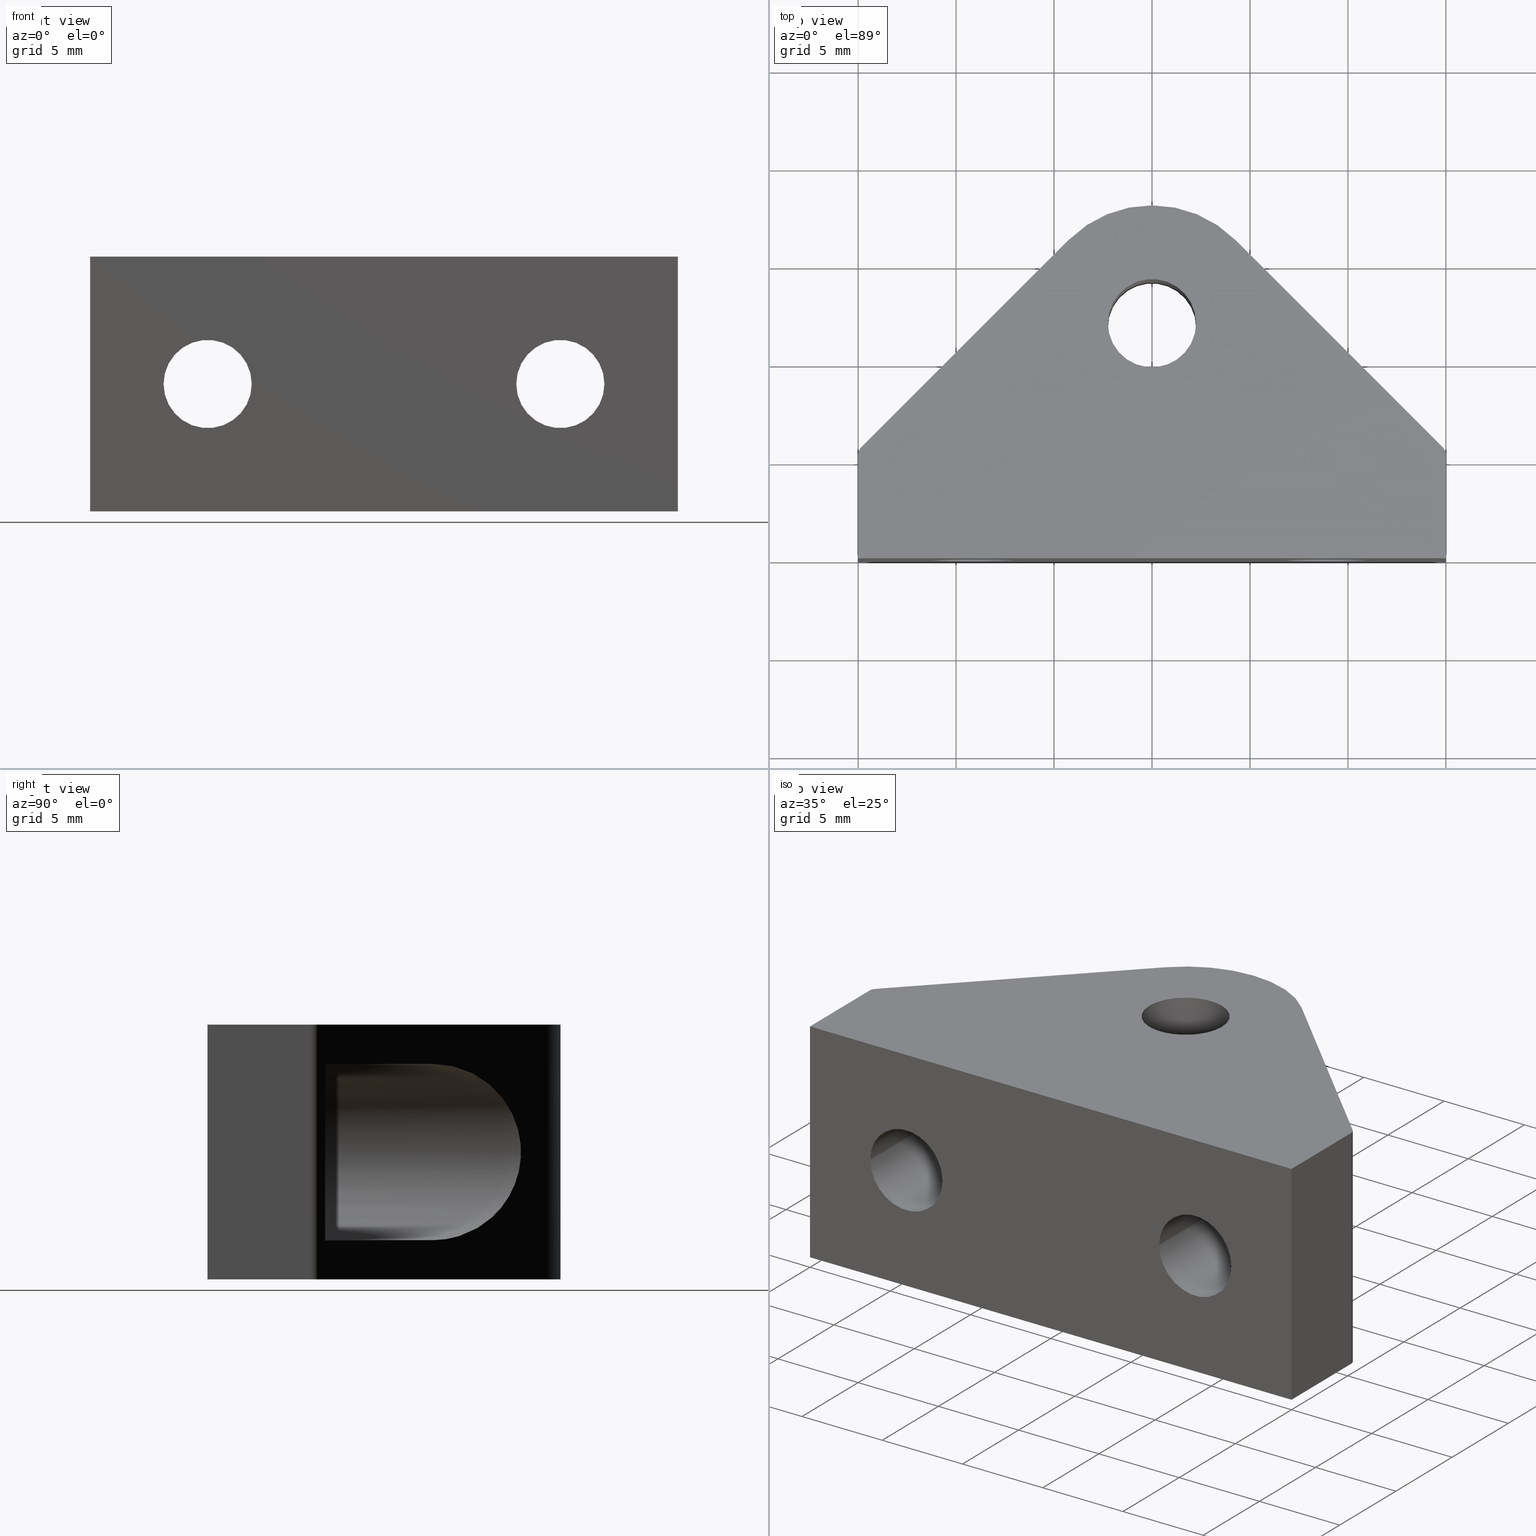
[diagram: canonical four-view strip — front | top / right | iso, engineering-drawing reading convention]
A machine part, canonical four-view strip (front | top / right | iso — engineering-drawing reading convention). The complete STEP part file that produces these views, byte-faithful:
ISO-10303-21;
HEADER;
/* Generated by software containing ST-Developer
 * from STEP Tools, Inc. (www.steptools.com) 
 */

FILE_DESCRIPTION(
/* description */ ('SUPPORTO TRIANG. GRIGIO'),
/* implementation_level */ '2;1');

FILE_NAME(
/* name */ 
'Q:\\Catalogo\\2_Accessori Dierre\\Per Download Web\\CATALOGO ACCESSOR
I PER RIPARI\\PAGINA 73\\DSPXX0000135.stp',
/* time_stamp */ '2018-02-06T16:03:23+01:00',
/* author */ ('fzagni'),
/* organization */ (''),
/* preprocessor_version */ 'ST-DEVELOPER v16.1',
/* originating_system */ 'Autodesk Inventor 2016',
/* authorisation */ '');

FILE_SCHEMA (('AUTOMOTIVE_DESIGN { 1 0 10303 214 3 1 1 }'));
ENDSEC;

DATA;
#10=MECHANICAL_DESIGN_GEOMETRIC_PRESENTATION_REPRESENTATION('',(#13),#633);
#11=SHAPE_REPRESENTATION_RELATIONSHIP('SRR','None',#642,#12);
#12=ADVANCED_BREP_SHAPE_REPRESENTATION('',(#14),#632);
#13=STYLED_ITEM('',(#651),#14);
#14=MANIFOLD_SOLID_BREP('Solido1',#379);
#15=CYLINDRICAL_SURFACE('',#390,4.5);
#16=CYLINDRICAL_SURFACE('',#392,2.25);
#17=CYLINDRICAL_SURFACE('',#397,4.5);
#18=CYLINDRICAL_SURFACE('',#398,2.25);
#19=CYLINDRICAL_SURFACE('',#400,2.25);
#20=CYLINDRICAL_SURFACE('',#403,0.5);
#21=CYLINDRICAL_SURFACE('',#410,0.5);
#22=CYLINDRICAL_SURFACE('',#412,6.);
#23=CIRCLE('',#388,4.5);
#24=CIRCLE('',#389,2.25);
#25=CIRCLE('',#393,2.25);
#26=CIRCLE('',#395,4.5);
#27=CIRCLE('',#396,2.25);
#28=CIRCLE('',#399,2.25);
#29=CIRCLE('',#401,2.25);
#30=CIRCLE('',#402,2.25);
#31=CIRCLE('',#404,0.5);
#32=CIRCLE('',#405,0.5);
#33=CIRCLE('',#408,6.);
#34=CIRCLE('',#409,0.5);
#35=CIRCLE('',#411,0.5);
#36=CIRCLE('',#413,6.);
#37=FACE_BOUND('',#76,.T.);
#38=FACE_BOUND('',#78,.T.);
#39=FACE_BOUND('',#81,.T.);
#40=FACE_BOUND('',#83,.T.);
#41=FACE_BOUND('',#86,.T.);
#42=FACE_BOUND('',#88,.T.);
#43=FACE_BOUND('',#92,.T.);
#44=FACE_BOUND('',#96,.T.);
#45=FACE_BOUND('',#98,.T.);
#46=FACE_BOUND('',#99,.T.);
#47=FACE_BOUND('',#102,.T.);
#48=ELLIPSE('',#386,6.36396103067893,4.5);
#49=ELLIPSE('',#391,6.36396103067893,4.5);
#50=FACE_OUTER_BOUND('',#71,.T.);
#51=FACE_OUTER_BOUND('',#72,.T.);
#52=FACE_OUTER_BOUND('',#73,.T.);
#53=FACE_OUTER_BOUND('',#74,.T.);
#54=FACE_OUTER_BOUND('',#75,.T.);
#55=FACE_OUTER_BOUND('',#77,.T.);
#56=FACE_OUTER_BOUND('',#79,.T.);
#57=FACE_OUTER_BOUND('',#80,.T.);
#58=FACE_OUTER_BOUND('',#82,.T.);
#59=FACE_OUTER_BOUND('',#84,.T.);
#60=FACE_OUTER_BOUND('',#85,.T.);
#61=FACE_OUTER_BOUND('',#87,.T.);
#62=FACE_OUTER_BOUND('',#89,.T.);
#63=FACE_OUTER_BOUND('',#90,.T.);
#64=FACE_OUTER_BOUND('',#91,.T.);
#65=FACE_OUTER_BOUND('',#93,.T.);
#66=FACE_OUTER_BOUND('',#94,.T.);
#67=FACE_OUTER_BOUND('',#95,.T.);
#68=FACE_OUTER_BOUND('',#97,.T.);
#69=FACE_OUTER_BOUND('',#100,.T.);
#70=FACE_OUTER_BOUND('',#101,.T.);
#71=EDGE_LOOP('',(#249,#250,#251));
#72=EDGE_LOOP('',(#252,#253,#254));
#73=EDGE_LOOP('',(#255,#256,#257));
#74=EDGE_LOOP('',(#258,#259,#260));
#75=EDGE_LOOP('',(#261,#262,#263,#264));
#76=EDGE_LOOP('',(#265,#266,#267,#268));
#77=EDGE_LOOP('',(#269,#270,#271,#272));
#78=EDGE_LOOP('',(#273));
#79=EDGE_LOOP('',(#274,#275,#276,#277));
#80=EDGE_LOOP('',(#278));
#81=EDGE_LOOP('',(#279));
#82=EDGE_LOOP('',(#280,#281,#282,#283));
#83=EDGE_LOOP('',(#284));
#84=EDGE_LOOP('',(#285,#286,#287,#288));
#85=EDGE_LOOP('',(#289));
#86=EDGE_LOOP('',(#290));
#87=EDGE_LOOP('',(#291));
#88=EDGE_LOOP('',(#292));
#89=EDGE_LOOP('',(#293,#294,#295,#296));
#90=EDGE_LOOP('',(#297,#298,#299,#300));
#91=EDGE_LOOP('',(#301,#302,#303,#304,#305,#306,#307,#308));
#92=EDGE_LOOP('',(#309));
#93=EDGE_LOOP('',(#310,#311,#312,#313));
#94=EDGE_LOOP('',(#314,#315,#316,#317));
#95=EDGE_LOOP('',(#318,#319,#320,#321));
#96=EDGE_LOOP('',(#322,#323,#324,#325));
#97=EDGE_LOOP('',(#326,#327,#328,#329));
#98=EDGE_LOOP('',(#330));
#99=EDGE_LOOP('',(#331));
#100=EDGE_LOOP('',(#332,#333,#334,#335));
#101=EDGE_LOOP('',(#336,#337,#338,#339,#340,#341,#342,#343));
#102=EDGE_LOOP('',(#344));
#103=LINE('',#530,#135);
#104=LINE('',#532,#136);
#105=LINE('',#533,#137);
#106=LINE('',#537,#138);
#107=LINE('',#539,#139);
#108=LINE('',#540,#140);
#109=LINE('',#544,#141);
#110=LINE('',#546,#142);
#111=LINE('',#547,#143);
#112=LINE('',#551,#144);
#113=LINE('',#553,#145);
#114=LINE('',#554,#146);
#115=LINE('',#558,#147);
#116=LINE('',#560,#148);
#117=LINE('',#562,#149);
#118=LINE('',#563,#150);
#119=LINE('',#564,#151);
#120=LINE('',#568,#152);
#121=LINE('',#594,#153);
#122=LINE('',#597,#154);
#123=LINE('',#600,#155);
#124=LINE('',#602,#156);
#125=LINE('',#603,#157);
#126=LINE('',#606,#158);
#127=LINE('',#611,#159);
#128=LINE('',#612,#160);
#129=LINE('',#616,#161);
#130=LINE('',#620,#162);
#131=LINE('',#622,#163);
#132=LINE('',#625,#164);
#133=LINE('',#626,#165);
#134=LINE('',#628,#166);
#135=VECTOR('',#422,7.77817459305202);
#136=VECTOR('',#423,5.5);
#137=VECTOR('',#424,5.5);
#138=VECTOR('',#427,7.77817459305202);
#139=VECTOR('',#428,5.5);
#140=VECTOR('',#429,5.5);
#141=VECTOR('',#432,7.77817459305202);
#142=VECTOR('',#433,5.5);
#143=VECTOR('',#434,5.5);
#144=VECTOR('',#437,7.77817459305202);
#145=VECTOR('',#438,5.5);
#146=VECTOR('',#439,5.5);
#147=VECTOR('',#442,13.);
#148=VECTOR('',#443,15.0060966544099);
#149=VECTOR('',#444,13.);
#150=VECTOR('',#445,15.0060966544099);
#151=VECTOR('',#446,9.);
#152=VECTOR('',#453,9.);
#153=VECTOR('',#486,13.);
#154=VECTOR('',#489,13.);
#155=VECTOR('',#492,5.29289321881346);
#156=VECTOR('',#493,13.);
#157=VECTOR('',#494,5.29289321881346);
#158=VECTOR('',#497,15.0060966544099);
#159=VECTOR('',#502,5.29289321881345);
#160=VECTOR('',#503,30.);
#161=VECTOR('',#508,13.);
#162=VECTOR('',#513,13.);
#163=VECTOR('',#516,15.0060966544099);
#164=VECTOR('',#519,13.);
#165=VECTOR('',#520,30.);
#166=VECTOR('',#523,5.29289321881345);
#167=VERTEX_POINT('',#528);
#168=VERTEX_POINT('',#529);
#169=VERTEX_POINT('',#531);
#170=VERTEX_POINT('',#535);
#171=VERTEX_POINT('',#536);
#172=VERTEX_POINT('',#538);
#173=VERTEX_POINT('',#542);
#174=VERTEX_POINT('',#543);
#175=VERTEX_POINT('',#545);
#176=VERTEX_POINT('',#549);
#177=VERTEX_POINT('',#550);
#178=VERTEX_POINT('',#552);
#179=VERTEX_POINT('',#556);
#180=VERTEX_POINT('',#557);
#181=VERTEX_POINT('',#559);
#182=VERTEX_POINT('',#561);
#183=VERTEX_POINT('',#569);
#184=VERTEX_POINT('',#574);
#185=VERTEX_POINT('',#578);
#186=VERTEX_POINT('',#582);
#187=VERTEX_POINT('',#585);
#188=VERTEX_POINT('',#587);
#189=VERTEX_POINT('',#590);
#190=VERTEX_POINT('',#591);
#191=VERTEX_POINT('',#593);
#192=VERTEX_POINT('',#595);
#193=VERTEX_POINT('',#599);
#194=VERTEX_POINT('',#601);
#195=VERTEX_POINT('',#605);
#196=VERTEX_POINT('',#608);
#197=VERTEX_POINT('',#610);
#198=VERTEX_POINT('',#614);
#199=VERTEX_POINT('',#618);
#200=VERTEX_POINT('',#624);
#201=EDGE_CURVE('',#167,#168,#103,.T.);
#202=EDGE_CURVE('',#169,#167,#104,.T.);
#203=EDGE_CURVE('',#169,#168,#105,.T.);
#204=EDGE_CURVE('',#170,#171,#106,.T.);
#205=EDGE_CURVE('',#172,#170,#107,.T.);
#206=EDGE_CURVE('',#172,#171,#108,.T.);
#207=EDGE_CURVE('',#173,#174,#109,.T.);
#208=EDGE_CURVE('',#175,#173,#110,.T.);
#209=EDGE_CURVE('',#175,#174,#111,.T.);
#210=EDGE_CURVE('',#176,#177,#112,.T.);
#211=EDGE_CURVE('',#178,#176,#113,.T.);
#212=EDGE_CURVE('',#178,#177,#114,.T.);
#213=EDGE_CURVE('',#179,#180,#115,.T.);
#214=EDGE_CURVE('',#179,#181,#116,.T.);
#215=EDGE_CURVE('',#182,#181,#117,.T.);
#216=EDGE_CURVE('',#180,#182,#118,.T.);
#217=EDGE_CURVE('',#177,#173,#119,.T.);
#218=EDGE_CURVE('',#174,#176,#48,.T.);
#219=EDGE_CURVE('',#172,#169,#23,.T.);
#220=EDGE_CURVE('',#168,#170,#120,.T.);
#221=EDGE_CURVE('',#183,#183,#24,.T.);
#222=EDGE_CURVE('',#171,#167,#49,.T.);
#223=EDGE_CURVE('',#184,#184,#25,.T.);
#224=EDGE_CURVE('',#175,#178,#26,.T.);
#225=EDGE_CURVE('',#185,#185,#27,.T.);
#226=EDGE_CURVE('',#186,#186,#28,.T.);
#227=EDGE_CURVE('',#187,#187,#29,.T.);
#228=EDGE_CURVE('',#188,#188,#30,.T.);
#229=EDGE_CURVE('',#189,#190,#31,.T.);
#230=EDGE_CURVE('',#190,#191,#121,.T.);
#231=EDGE_CURVE('',#191,#192,#32,.T.);
#232=EDGE_CURVE('',#192,#189,#122,.T.);
#233=EDGE_CURVE('',#192,#193,#123,.T.);
#234=EDGE_CURVE('',#193,#194,#124,.T.);
#235=EDGE_CURVE('',#189,#194,#125,.T.);
#236=EDGE_CURVE('',#195,#191,#126,.T.);
#237=EDGE_CURVE('',#181,#195,#33,.T.);
#238=EDGE_CURVE('',#196,#179,#34,.T.);
#239=EDGE_CURVE('',#197,#196,#127,.T.);
#240=EDGE_CURVE('',#193,#197,#128,.T.);
#241=EDGE_CURVE('',#180,#198,#35,.T.);
#242=EDGE_CURVE('',#198,#196,#129,.T.);
#243=EDGE_CURVE('',#199,#182,#36,.T.);
#244=EDGE_CURVE('',#195,#199,#130,.T.);
#245=EDGE_CURVE('',#199,#190,#131,.T.);
#246=EDGE_CURVE('',#197,#200,#132,.T.);
#247=EDGE_CURVE('',#194,#200,#133,.T.);
#248=EDGE_CURVE('',#200,#198,#134,.T.);
#249=ORIENTED_EDGE('',*,*,#201,.F.);
#250=ORIENTED_EDGE('',*,*,#202,.F.);
#251=ORIENTED_EDGE('',*,*,#203,.T.);
#252=ORIENTED_EDGE('',*,*,#204,.F.);
#253=ORIENTED_EDGE('',*,*,#205,.F.);
#254=ORIENTED_EDGE('',*,*,#206,.T.);
#255=ORIENTED_EDGE('',*,*,#207,.F.);
#256=ORIENTED_EDGE('',*,*,#208,.F.);
#257=ORIENTED_EDGE('',*,*,#209,.T.);
#258=ORIENTED_EDGE('',*,*,#210,.F.);
#259=ORIENTED_EDGE('',*,*,#211,.F.);
#260=ORIENTED_EDGE('',*,*,#212,.T.);
#261=ORIENTED_EDGE('',*,*,#213,.F.);
#262=ORIENTED_EDGE('',*,*,#214,.T.);
#263=ORIENTED_EDGE('',*,*,#215,.F.);
#264=ORIENTED_EDGE('',*,*,#216,.F.);
#265=ORIENTED_EDGE('',*,*,#210,.T.);
#266=ORIENTED_EDGE('',*,*,#217,.T.);
#267=ORIENTED_EDGE('',*,*,#207,.T.);
#268=ORIENTED_EDGE('',*,*,#218,.T.);
#269=ORIENTED_EDGE('',*,*,#219,.F.);
#270=ORIENTED_EDGE('',*,*,#205,.T.);
#271=ORIENTED_EDGE('',*,*,#220,.F.);
#272=ORIENTED_EDGE('',*,*,#203,.F.);
#273=ORIENTED_EDGE('',*,*,#221,.T.);
#274=ORIENTED_EDGE('',*,*,#206,.F.);
#275=ORIENTED_EDGE('',*,*,#219,.T.);
#276=ORIENTED_EDGE('',*,*,#202,.T.);
#277=ORIENTED_EDGE('',*,*,#222,.F.);
#278=ORIENTED_EDGE('',*,*,#223,.F.);
#279=ORIENTED_EDGE('',*,*,#221,.F.);
#280=ORIENTED_EDGE('',*,*,#208,.T.);
#281=ORIENTED_EDGE('',*,*,#217,.F.);
#282=ORIENTED_EDGE('',*,*,#212,.F.);
#283=ORIENTED_EDGE('',*,*,#224,.F.);
#284=ORIENTED_EDGE('',*,*,#225,.T.);
#285=ORIENTED_EDGE('',*,*,#211,.T.);
#286=ORIENTED_EDGE('',*,*,#218,.F.);
#287=ORIENTED_EDGE('',*,*,#209,.F.);
#288=ORIENTED_EDGE('',*,*,#224,.T.);
#289=ORIENTED_EDGE('',*,*,#226,.F.);
#290=ORIENTED_EDGE('',*,*,#225,.F.);
#291=ORIENTED_EDGE('',*,*,#227,.F.);
#292=ORIENTED_EDGE('',*,*,#228,.F.);
#293=ORIENTED_EDGE('',*,*,#229,.T.);
#294=ORIENTED_EDGE('',*,*,#230,.T.);
#295=ORIENTED_EDGE('',*,*,#231,.T.);
#296=ORIENTED_EDGE('',*,*,#232,.T.);
#297=ORIENTED_EDGE('',*,*,#232,.F.);
#298=ORIENTED_EDGE('',*,*,#233,.T.);
#299=ORIENTED_EDGE('',*,*,#234,.T.);
#300=ORIENTED_EDGE('',*,*,#235,.F.);
#301=ORIENTED_EDGE('',*,*,#231,.F.);
#302=ORIENTED_EDGE('',*,*,#236,.F.);
#303=ORIENTED_EDGE('',*,*,#237,.F.);
#304=ORIENTED_EDGE('',*,*,#214,.F.);
#305=ORIENTED_EDGE('',*,*,#238,.F.);
#306=ORIENTED_EDGE('',*,*,#239,.F.);
#307=ORIENTED_EDGE('',*,*,#240,.F.);
#308=ORIENTED_EDGE('',*,*,#233,.F.);
#309=ORIENTED_EDGE('',*,*,#227,.T.);
#310=ORIENTED_EDGE('',*,*,#241,.T.);
#311=ORIENTED_EDGE('',*,*,#242,.T.);
#312=ORIENTED_EDGE('',*,*,#238,.T.);
#313=ORIENTED_EDGE('',*,*,#213,.T.);
#314=ORIENTED_EDGE('',*,*,#243,.T.);
#315=ORIENTED_EDGE('',*,*,#215,.T.);
#316=ORIENTED_EDGE('',*,*,#237,.T.);
#317=ORIENTED_EDGE('',*,*,#244,.T.);
#318=ORIENTED_EDGE('',*,*,#230,.F.);
#319=ORIENTED_EDGE('',*,*,#245,.F.);
#320=ORIENTED_EDGE('',*,*,#244,.F.);
#321=ORIENTED_EDGE('',*,*,#236,.T.);
#322=ORIENTED_EDGE('',*,*,#204,.T.);
#323=ORIENTED_EDGE('',*,*,#222,.T.);
#324=ORIENTED_EDGE('',*,*,#201,.T.);
#325=ORIENTED_EDGE('',*,*,#220,.T.);
#326=ORIENTED_EDGE('',*,*,#240,.T.);
#327=ORIENTED_EDGE('',*,*,#246,.T.);
#328=ORIENTED_EDGE('',*,*,#247,.F.);
#329=ORIENTED_EDGE('',*,*,#234,.F.);
#330=ORIENTED_EDGE('',*,*,#223,.T.);
#331=ORIENTED_EDGE('',*,*,#226,.T.);
#332=ORIENTED_EDGE('',*,*,#242,.F.);
#333=ORIENTED_EDGE('',*,*,#248,.F.);
#334=ORIENTED_EDGE('',*,*,#246,.F.);
#335=ORIENTED_EDGE('',*,*,#239,.T.);
#336=ORIENTED_EDGE('',*,*,#229,.F.);
#337=ORIENTED_EDGE('',*,*,#235,.T.);
#338=ORIENTED_EDGE('',*,*,#247,.T.);
#339=ORIENTED_EDGE('',*,*,#248,.T.);
#340=ORIENTED_EDGE('',*,*,#241,.F.);
#341=ORIENTED_EDGE('',*,*,#216,.T.);
#342=ORIENTED_EDGE('',*,*,#243,.F.);
#343=ORIENTED_EDGE('',*,*,#245,.T.);
#344=ORIENTED_EDGE('',*,*,#228,.T.);
#345=PLANE('',#381);
#346=PLANE('',#382);
#347=PLANE('',#383);
#348=PLANE('',#384);
#349=PLANE('',#385);
#350=PLANE('',#387);
#351=PLANE('',#394);
#352=PLANE('',#406);
#353=PLANE('',#407);
#354=PLANE('',#414);
#355=PLANE('',#415);
#356=PLANE('',#416);
#357=PLANE('',#417);
#358=ADVANCED_FACE('',(#50),#345,.F.);
#359=ADVANCED_FACE('',(#51),#346,.F.);
#360=ADVANCED_FACE('',(#52),#347,.F.);
#361=ADVANCED_FACE('',(#53),#348,.F.);
#362=ADVANCED_FACE('',(#54,#37),#349,.T.);
#363=ADVANCED_FACE('',(#55,#38),#350,.F.);
#364=ADVANCED_FACE('',(#56),#15,.F.);
#365=ADVANCED_FACE('',(#57,#39),#16,.F.);
#366=ADVANCED_FACE('',(#58,#40),#351,.F.);
#367=ADVANCED_FACE('',(#59),#17,.F.);
#368=ADVANCED_FACE('',(#60,#41),#18,.F.);
#369=ADVANCED_FACE('',(#61,#42),#19,.F.);
#370=ADVANCED_FACE('',(#62),#20,.T.);
#371=ADVANCED_FACE('',(#63),#352,.T.);
#372=ADVANCED_FACE('',(#64,#43),#353,.F.);
#373=ADVANCED_FACE('',(#65),#21,.T.);
#374=ADVANCED_FACE('',(#66),#22,.T.);
#375=ADVANCED_FACE('',(#67,#44),#354,.T.);
#376=ADVANCED_FACE('',(#68,#45,#46),#355,.T.);
#377=ADVANCED_FACE('',(#69),#356,.T.);
#378=ADVANCED_FACE('',(#70,#47),#357,.T.);
#379=CLOSED_SHELL('',(#358,#359,#360,#361,#362,#363,#364,#365,#366,#367,
#368,#369,#370,#371,#372,#373,#374,#375,#376,#377,#378));
#380=AXIS2_PLACEMENT_3D('placement',#526,#418,#419);
#381=AXIS2_PLACEMENT_3D('',#527,#420,#421);
#382=AXIS2_PLACEMENT_3D('',#534,#425,#426);
#383=AXIS2_PLACEMENT_3D('',#541,#430,#431);
#384=AXIS2_PLACEMENT_3D('',#548,#435,#436);
#385=AXIS2_PLACEMENT_3D('',#555,#440,#441);
#386=AXIS2_PLACEMENT_3D('',#565,#447,#448);
#387=AXIS2_PLACEMENT_3D('',#566,#449,#450);
#388=AXIS2_PLACEMENT_3D('',#567,#451,#452);
#389=AXIS2_PLACEMENT_3D('',#570,#454,#455);
#390=AXIS2_PLACEMENT_3D('',#571,#456,#457);
#391=AXIS2_PLACEMENT_3D('',#572,#458,#459);
#392=AXIS2_PLACEMENT_3D('',#573,#460,#461);
#393=AXIS2_PLACEMENT_3D('',#575,#462,#463);
#394=AXIS2_PLACEMENT_3D('',#576,#464,#465);
#395=AXIS2_PLACEMENT_3D('',#577,#466,#467);
#396=AXIS2_PLACEMENT_3D('',#579,#468,#469);
#397=AXIS2_PLACEMENT_3D('',#580,#470,#471);
#398=AXIS2_PLACEMENT_3D('',#581,#472,#473);
#399=AXIS2_PLACEMENT_3D('',#583,#474,#475);
#400=AXIS2_PLACEMENT_3D('',#584,#476,#477);
#401=AXIS2_PLACEMENT_3D('',#586,#478,#479);
#402=AXIS2_PLACEMENT_3D('',#588,#480,#481);
#403=AXIS2_PLACEMENT_3D('',#589,#482,#483);
#404=AXIS2_PLACEMENT_3D('',#592,#484,#485);
#405=AXIS2_PLACEMENT_3D('',#596,#487,#488);
#406=AXIS2_PLACEMENT_3D('',#598,#490,#491);
#407=AXIS2_PLACEMENT_3D('',#604,#495,#496);
#408=AXIS2_PLACEMENT_3D('',#607,#498,#499);
#409=AXIS2_PLACEMENT_3D('',#609,#500,#501);
#410=AXIS2_PLACEMENT_3D('',#613,#504,#505);
#411=AXIS2_PLACEMENT_3D('',#615,#506,#507);
#412=AXIS2_PLACEMENT_3D('',#617,#509,#510);
#413=AXIS2_PLACEMENT_3D('',#619,#511,#512);
#414=AXIS2_PLACEMENT_3D('',#621,#514,#515);
#415=AXIS2_PLACEMENT_3D('',#623,#517,#518);
#416=AXIS2_PLACEMENT_3D('',#627,#521,#522);
#417=AXIS2_PLACEMENT_3D('',#629,#524,#525);
#418=DIRECTION('axis',(0.,0.,1.));
#419=DIRECTION('refdir',(1.,0.,0.));
#420=DIRECTION('center_axis',(0.,0.,1.));
#421=DIRECTION('ref_axis',(0.,1.,0.));
#422=DIRECTION('',(-0.707106781186547,-0.707106781186548,0.));
#423=DIRECTION('',(0.,1.,0.));
#424=DIRECTION('',(-1.,0.,0.));
#425=DIRECTION('center_axis',(0.,4.03717463500057E-16,-1.));
#426=DIRECTION('ref_axis',(0.,-1.,-3.99680288865056E-16));
#427=DIRECTION('',(0.707106781186547,0.707106781186548,2.85471356124323E-16));
#428=DIRECTION('',(-1.,0.,0.));
#429=DIRECTION('',(0.,1.,0.));
#430=DIRECTION('center_axis',(0.,0.,1.));
#431=DIRECTION('ref_axis',(0.,-1.,0.));
#432=DIRECTION('',(-0.707106781186548,0.707106781186547,0.));
#433=DIRECTION('',(1.,0.,0.));
#434=DIRECTION('',(0.,1.,0.));
#435=DIRECTION('center_axis',(0.,0.,-1.));
#436=DIRECTION('ref_axis',(0.,1.,0.));
#437=DIRECTION('',(0.707106781186548,-0.707106781186547,0.));
#438=DIRECTION('',(0.,1.,0.));
#439=DIRECTION('',(1.,0.,0.));
#440=DIRECTION('center_axis',(0.707106781186547,0.707106781186548,0.));
#441=DIRECTION('ref_axis',(-0.707106781186548,0.707106781186547,0.));
#442=DIRECTION('',(0.,0.,1.));
#443=DIRECTION('',(-0.707106781186548,0.707106781186547,0.));
#444=DIRECTION('',(0.,0.,-1.));
#445=DIRECTION('',(-0.707106781186548,0.707106781186547,0.));
#446=DIRECTION('',(0.,0.,1.));
#447=DIRECTION('center_axis',(-0.707106781186547,-0.707106781186548,0.));
#448=DIRECTION('ref_axis',(0.707106781186548,-0.707106781186547,0.));
#449=DIRECTION('center_axis',(0.,-1.,0.));
#450=DIRECTION('ref_axis',(1.,0.,0.));
#451=DIRECTION('center_axis',(0.,-1.,0.));
#452=DIRECTION('ref_axis',(1.,0.,0.));
#453=DIRECTION('',(0.,0.,-1.));
#454=DIRECTION('center_axis',(0.,-1.,0.));
#455=DIRECTION('ref_axis',(1.,0.,0.));
#456=DIRECTION('center_axis',(0.,-1.,0.));
#457=DIRECTION('ref_axis',(1.,0.,0.));
#458=DIRECTION('center_axis',(0.707106781186548,-0.707106781186547,0.));
#459=DIRECTION('ref_axis',(0.707106781186547,0.707106781186548,0.));
#460=DIRECTION('center_axis',(0.,-1.,0.));
#461=DIRECTION('ref_axis',(1.,0.,0.));
#462=DIRECTION('center_axis',(0.,1.,0.));
#463=DIRECTION('ref_axis',(1.,0.,0.));
#464=DIRECTION('center_axis',(0.,-1.,0.));
#465=DIRECTION('ref_axis',(1.,0.,0.));
#466=DIRECTION('center_axis',(0.,-1.,0.));
#467=DIRECTION('ref_axis',(1.,0.,0.));
#468=DIRECTION('center_axis',(0.,-1.,0.));
#469=DIRECTION('ref_axis',(1.,0.,0.));
#470=DIRECTION('center_axis',(0.,-1.,0.));
#471=DIRECTION('ref_axis',(1.,0.,0.));
#472=DIRECTION('center_axis',(0.,-1.,0.));
#473=DIRECTION('ref_axis',(1.,0.,0.));
#474=DIRECTION('center_axis',(0.,1.,0.));
#475=DIRECTION('ref_axis',(1.,0.,0.));
#476=DIRECTION('center_axis',(0.,0.,1.));
#477=DIRECTION('ref_axis',(1.,0.,0.));
#478=DIRECTION('center_axis',(0.,0.,1.));
#479=DIRECTION('ref_axis',(1.,0.,0.));
#480=DIRECTION('center_axis',(0.,0.,-1.));
#481=DIRECTION('ref_axis',(1.,0.,0.));
#482=DIRECTION('center_axis',(0.,0.,1.));
#483=DIRECTION('ref_axis',(-0.923879532511288,0.382683432365088,0.));
#484=DIRECTION('center_axis',(0.,0.,-1.));
#485=DIRECTION('ref_axis',(-0.923879532511288,0.382683432365088,0.));
#486=DIRECTION('',(0.,0.,-1.));
#487=DIRECTION('center_axis',(0.,0.,1.));
#488=DIRECTION('ref_axis',(-0.923879532511288,0.382683432365088,0.));
#489=DIRECTION('',(0.,0.,1.));
#490=DIRECTION('center_axis',(-1.,-4.03717463500057E-16,0.));
#491=DIRECTION('ref_axis',(4.03717463500057E-16,-1.,0.));
#492=DIRECTION('',(4.03717463500057E-16,-1.,0.));
#493=DIRECTION('',(0.,0.,1.));
#494=DIRECTION('',(4.03717463500057E-16,-1.,0.));
#495=DIRECTION('center_axis',(0.,0.,1.));
#496=DIRECTION('ref_axis',(1.,0.,0.));
#497=DIRECTION('',(-0.707106781186547,-0.707106781186548,0.));
#498=DIRECTION('center_axis',(0.,0.,1.));
#499=DIRECTION('ref_axis',(0.,1.,0.));
#500=DIRECTION('center_axis',(0.,0.,1.));
#501=DIRECTION('ref_axis',(0.923879532511287,0.38268343236509,0.));
#502=DIRECTION('',(8.07434927000114E-16,1.,0.));
#503=DIRECTION('',(1.,0.,0.));
#504=DIRECTION('center_axis',(0.,0.,1.));
#505=DIRECTION('ref_axis',(0.923879532511287,0.38268343236509,0.));
#506=DIRECTION('center_axis',(0.,0.,-1.));
#507=DIRECTION('ref_axis',(0.923879532511287,0.38268343236509,0.));
#508=DIRECTION('',(0.,0.,-1.));
#509=DIRECTION('center_axis',(0.,0.,1.));
#510=DIRECTION('ref_axis',(0.,1.,0.));
#511=DIRECTION('center_axis',(0.,0.,-1.));
#512=DIRECTION('ref_axis',(0.,1.,0.));
#513=DIRECTION('',(0.,0.,1.));
#514=DIRECTION('center_axis',(-0.707106781186548,0.707106781186547,0.));
#515=DIRECTION('ref_axis',(-0.707106781186547,-0.707106781186548,0.));
#516=DIRECTION('',(-0.707106781186547,-0.707106781186548,0.));
#517=DIRECTION('center_axis',(0.,-1.,0.));
#518=DIRECTION('ref_axis',(1.,0.,0.));
#519=DIRECTION('',(0.,0.,1.));
#520=DIRECTION('',(1.,0.,0.));
#521=DIRECTION('center_axis',(1.,-8.07434927000114E-16,0.));
#522=DIRECTION('ref_axis',(7.105427357601E-16,1.,0.));
#523=DIRECTION('',(8.07434927000114E-16,1.,0.));
#524=DIRECTION('center_axis',(0.,0.,1.));
#525=DIRECTION('ref_axis',(1.,0.,0.));
#526=CARTESIAN_POINT('',(0.,0.,0.));
#527=CARTESIAN_POINT('Origin',(6.,6.,11.));
#528=CARTESIAN_POINT('',(6.,11.5,11.));
#529=CARTESIAN_POINT('',(0.499999999999999,6.,11.));
#530=CARTESIAN_POINT('',(9.125,14.625,11.));
#531=CARTESIAN_POINT('',(6.,6.,11.));
#532=CARTESIAN_POINT('',(6.,11.,11.));
#533=CARTESIAN_POINT('',(6.,6.,11.));
#534=CARTESIAN_POINT('Origin',(6.,11.5,2.));
#535=CARTESIAN_POINT('',(0.499999999999999,6.,2.));
#536=CARTESIAN_POINT('',(6.,11.5,2.));
#537=CARTESIAN_POINT('',(10.5,16.,2.));
#538=CARTESIAN_POINT('',(6.,6.,2.));
#539=CARTESIAN_POINT('',(6.,6.,2.));
#540=CARTESIAN_POINT('',(6.,11.,2.));
#541=CARTESIAN_POINT('Origin',(24.,11.5,11.));
#542=CARTESIAN_POINT('',(29.5,6.,11.));
#543=CARTESIAN_POINT('',(24.,11.5,11.));
#544=CARTESIAN_POINT('',(27.,8.5,11.));
#545=CARTESIAN_POINT('',(24.,6.,11.));
#546=CARTESIAN_POINT('',(24.,6.,11.));
#547=CARTESIAN_POINT('',(24.,11.,11.));
#548=CARTESIAN_POINT('Origin',(24.,6.,2.));
#549=CARTESIAN_POINT('',(24.,11.5,2.));
#550=CARTESIAN_POINT('',(29.5,6.,2.));
#551=CARTESIAN_POINT('',(28.375,7.125,2.));
#552=CARTESIAN_POINT('',(24.,6.,2.));
#553=CARTESIAN_POINT('',(24.,11.,2.));
#554=CARTESIAN_POINT('',(24.,6.,2.));
#555=CARTESIAN_POINT('Origin',(30.,5.5,0.));
#556=CARTESIAN_POINT('',(29.8535533905933,5.64644660940672,0.));
#557=CARTESIAN_POINT('',(29.8535533905933,5.64644660940672,13.));
#558=CARTESIAN_POINT('',(29.8535533905933,5.64644660940672,0.));
#559=CARTESIAN_POINT('',(19.2426406871193,16.2573593128807,0.));
#560=CARTESIAN_POINT('',(30.,5.5,0.));
#561=CARTESIAN_POINT('',(19.2426406871193,16.2573593128807,13.));
#562=CARTESIAN_POINT('',(19.2426406871193,16.2573593128807,0.));
#563=CARTESIAN_POINT('',(30.,5.5,13.));
#564=CARTESIAN_POINT('',(29.5,6.,5.5));
#565=CARTESIAN_POINT('Origin',(24.,11.5,6.5));
#566=CARTESIAN_POINT('Origin',(6.,6.,6.5));
#567=CARTESIAN_POINT('Origin',(6.,6.,6.5));
#568=CARTESIAN_POINT('',(0.5,6.,1.));
#569=CARTESIAN_POINT('',(3.75,6.,6.5));
#570=CARTESIAN_POINT('Origin',(6.,6.,6.5));
#571=CARTESIAN_POINT('Origin',(6.,11.,6.5));
#572=CARTESIAN_POINT('Origin',(6.,11.5,6.5));
#573=CARTESIAN_POINT('Origin',(6.,-21.3300159009524,6.5));
#574=CARTESIAN_POINT('',(3.75,0.,6.5));
#575=CARTESIAN_POINT('Origin',(6.,0.,6.5));
#576=CARTESIAN_POINT('Origin',(24.,6.,6.5));
#577=CARTESIAN_POINT('Origin',(24.,6.,6.5));
#578=CARTESIAN_POINT('',(21.75,6.,6.5));
#579=CARTESIAN_POINT('Origin',(24.,6.,6.5));
#580=CARTESIAN_POINT('Origin',(24.,11.,6.5));
#581=CARTESIAN_POINT('Origin',(24.,-21.3300159009524,6.5));
#582=CARTESIAN_POINT('',(21.75,0.,6.5));
#583=CARTESIAN_POINT('Origin',(24.,0.,6.5));
#584=CARTESIAN_POINT('Origin',(15.,12.,-24.3300159009524));
#585=CARTESIAN_POINT('',(12.75,12.,0.));
#586=CARTESIAN_POINT('Origin',(15.,12.,0.));
#587=CARTESIAN_POINT('',(17.25,12.,13.));
#588=CARTESIAN_POINT('Origin',(15.,12.,13.));
#589=CARTESIAN_POINT('Origin',(0.499999999999998,5.29289321881346,0.));
#590=CARTESIAN_POINT('',(-2.13683342487602E-15,5.29289321881346,13.));
#591=CARTESIAN_POINT('',(0.146446609406727,5.64644660940673,13.));
#592=CARTESIAN_POINT('Origin',(0.499999999999998,5.29289321881346,13.));
#593=CARTESIAN_POINT('',(0.146446609406727,5.64644660940673,0.));
#594=CARTESIAN_POINT('',(0.146446609406727,5.64644660940673,0.));
#595=CARTESIAN_POINT('',(-2.13683342487602E-15,5.29289321881346,0.));
#596=CARTESIAN_POINT('Origin',(0.499999999999998,5.29289321881346,0.));
#597=CARTESIAN_POINT('',(-2.15105711021124E-15,5.29289321881346,0.));
#598=CARTESIAN_POINT('Origin',(-2.22044604925031E-15,5.5,0.));
#599=CARTESIAN_POINT('',(0.,0.,0.));
#600=CARTESIAN_POINT('',(-2.22044604925031E-15,5.5,0.));
#601=CARTESIAN_POINT('',(0.,0.,13.));
#602=CARTESIAN_POINT('',(0.,0.,0.));
#603=CARTESIAN_POINT('',(-2.22044604925031E-15,5.5,13.));
#604=CARTESIAN_POINT('Origin',(20.6917021823758,8.05330085889911,0.));
#605=CARTESIAN_POINT('',(10.7573593128807,16.2573593128807,0.));
#606=CARTESIAN_POINT('',(15.,20.5,0.));
#607=CARTESIAN_POINT('Origin',(15.,12.0147186257614,0.));
#608=CARTESIAN_POINT('',(30.,5.29289321881345,0.));
#609=CARTESIAN_POINT('Origin',(29.5,5.29289321881345,0.));
#610=CARTESIAN_POINT('',(30.,0.,0.));
#611=CARTESIAN_POINT('',(30.,0.,0.));
#612=CARTESIAN_POINT('',(0.,0.,0.));
#613=CARTESIAN_POINT('Origin',(29.5,5.29289321881345,0.));
#614=CARTESIAN_POINT('',(30.,5.29289321881345,13.));
#615=CARTESIAN_POINT('Origin',(29.5,5.29289321881345,13.));
#616=CARTESIAN_POINT('',(30.,5.29289321881345,0.));
#617=CARTESIAN_POINT('Origin',(15.,12.0147186257614,0.));
#618=CARTESIAN_POINT('',(10.7573593128807,16.2573593128807,13.));
#619=CARTESIAN_POINT('Origin',(15.,12.0147186257614,13.));
#620=CARTESIAN_POINT('',(10.7573593128807,16.2573593128807,0.));
#621=CARTESIAN_POINT('Origin',(15.,20.5,0.));
#622=CARTESIAN_POINT('',(15.,20.5,13.));
#623=CARTESIAN_POINT('Origin',(15.,0.,0.));
#624=CARTESIAN_POINT('',(30.,0.,13.));
#625=CARTESIAN_POINT('',(30.,0.,0.));
#626=CARTESIAN_POINT('',(0.,0.,13.));
#627=CARTESIAN_POINT('Origin',(30.,0.,0.));
#628=CARTESIAN_POINT('',(30.,0.,13.));
#629=CARTESIAN_POINT('Origin',(20.6917021823758,8.05330085889911,13.));
#630=UNCERTAINTY_MEASURE_WITH_UNIT(LENGTH_MEASURE(0.01),#634,
'DISTANCE_ACCURACY_VALUE',
'Maximum model space distance between geometric entities at asserted c
onnectivities');
#631=UNCERTAINTY_MEASURE_WITH_UNIT(LENGTH_MEASURE(1.E-6),#634,
'DISTANCE_ACCURACY_VALUE',
'Maximum model space distance between geometric entities at asserted c
onnectivities');
#632=(
GEOMETRIC_REPRESENTATION_CONTEXT(3)
GLOBAL_UNCERTAINTY_ASSIGNED_CONTEXT((#630))
GLOBAL_UNIT_ASSIGNED_CONTEXT((#634,#637,#635))
REPRESENTATION_CONTEXT('','3D')
);
#633=(
GEOMETRIC_REPRESENTATION_CONTEXT(3)
GLOBAL_UNCERTAINTY_ASSIGNED_CONTEXT((#631))
GLOBAL_UNIT_ASSIGNED_CONTEXT((#634,#637,#635))
REPRESENTATION_CONTEXT('','3D')
);
#634=(
LENGTH_UNIT()
NAMED_UNIT(*)
SI_UNIT(.MILLI.,.METRE.)
);
#635=(
NAMED_UNIT(*)
SI_UNIT($,.STERADIAN.)
SOLID_ANGLE_UNIT()
);
#636=DIMENSIONAL_EXPONENTS(0.,0.,0.,0.,0.,0.,0.);
#637=(
CONVERSION_BASED_UNIT('degree',#639)
NAMED_UNIT(#636)
PLANE_ANGLE_UNIT()
);
#638=(
NAMED_UNIT(*)
PLANE_ANGLE_UNIT()
SI_UNIT($,.RADIAN.)
);
#639=PLANE_ANGLE_MEASURE_WITH_UNIT(PLANE_ANGLE_MEASURE(0.01745329252),#638);
#640=SHAPE_DEFINITION_REPRESENTATION(#641,#642);
#641=PRODUCT_DEFINITION_SHAPE('',$,#644);
#642=SHAPE_REPRESENTATION('',(#380),#632);
#643=PRODUCT_DEFINITION_CONTEXT('part definition',#648,'design');
#644=PRODUCT_DEFINITION('30.009.00','30.009.00',#645,#643);
#645=PRODUCT_DEFINITION_FORMATION('','A',#650);
#646=PRODUCT_RELATED_PRODUCT_CATEGORY('30.009.00','30.009.00',(#650));
#647=APPLICATION_PROTOCOL_DEFINITION('international standard',
'automotive_design',2009,#648);
#648=APPLICATION_CONTEXT(
'Core Data for Automotive Mechanical Design Process');
#649=PRODUCT_CONTEXT('part definition',#648,'mechanical');
#650=PRODUCT('30.009.00','30.009.00',$,(#649));
#651=PRESENTATION_STYLE_ASSIGNMENT((#652));
#652=SURFACE_STYLE_USAGE(.BOTH.,#653);
#653=SURFACE_SIDE_STYLE('',(#654));
#654=SURFACE_STYLE_FILL_AREA(#655);
#655=FILL_AREA_STYLE('',(#656));
#656=FILL_AREA_STYLE_COLOUR('',#657);
#657=COLOUR_RGB('',0.501960784313725,0.501960784313725,0.501960784313725);
ENDSEC;
END-ISO-10303-21;
